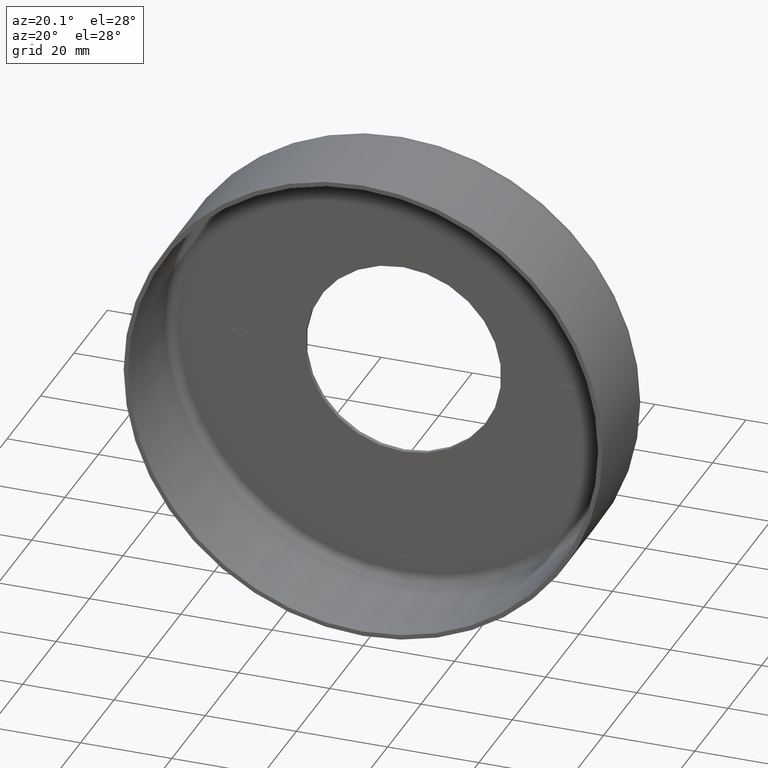
[diagram: clean part render]
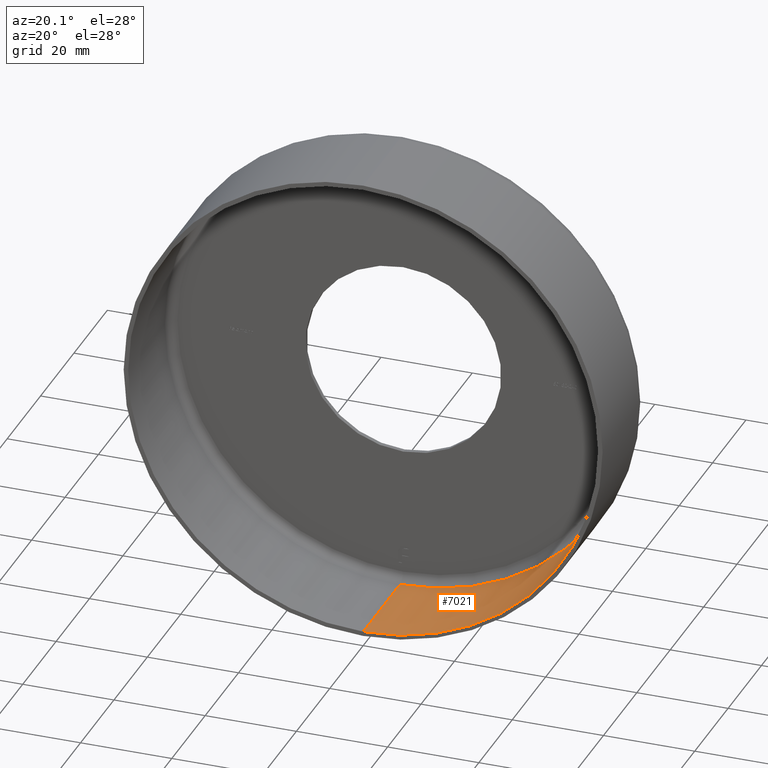
[diagram: same view with one face highlighted and labeled with its STEP entity id]
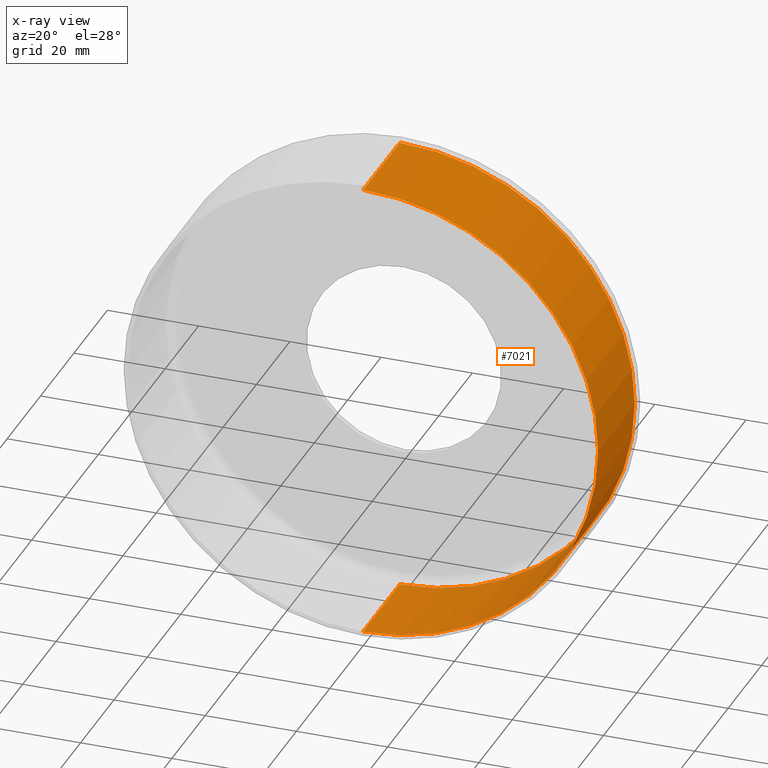
[diagram: x-ray of the same camera — body ghosted, the highlighted face saturated]
A machine part, auxiliary view. The second image highlights one B-rep face of the part: STEP entity #7021.
The next image is the same camera in x-ray: the body ghosted, the highlighted face saturated — about 0% of this face is hidden behind the body in this view.
In plain terms, the highlighted cylindrical surface (partial cylindrical patch) has radius 51.5 mm, axis along (-0, -1, -0).
Its self-contained STEP definition (entity closure, byte-faithful):
#143 = CIRCLE ( 'NONE', #1248, 51.50000000000000711 ) ;
#405 = CARTESIAN_POINT ( 'NONE',  ( 0.000000000000000000, 22.00000000000000355, -51.50000000000000711 ) ) ;
#896 = DIRECTION ( 'NONE',  ( -0.000000000000000000, -1.000000000000000000, -0.000000000000000000 ) ) ;
#936 = VERTEX_POINT ( 'NONE', #3078 ) ;
#1248 = AXIS2_PLACEMENT_3D ( 'NONE', #1702, #10227, #5372 ) ;
#1380 = ORIENTED_EDGE ( 'NONE', *, *, #5346, .F. ) ;
#1469 = EDGE_CURVE ( 'NONE', #11287, #12574, #10505, .T. ) ;
#1626 = LINE ( 'NONE', #10617, #10022 ) ;
#1702 = CARTESIAN_POINT ( 'NONE',  ( 0.000000000000000000, 22.00000000000000355, 0.000000000000000000 ) ) ;
#2189 = CARTESIAN_POINT ( 'NONE',  ( 0.000000000000000000, -1.224646799147353207E-16, 0.000000000000000000 ) ) ;
#2279 = DIRECTION ( 'NONE',  ( 0.000000000000000000, 0.000000000000000000, -1.000000000000000000 ) ) ;
#2455 = DIRECTION ( 'NONE',  ( 0.000000000000000000, 0.000000000000000000, -1.000000000000000000 ) ) ;
#2473 = AXIS2_PLACEMENT_3D ( 'NONE', #2189, #9387, #2279 ) ;
#3078 = CARTESIAN_POINT ( 'NONE',  ( 0.000000000000000000, -1.224646799147353207E-16, -51.50000000000000711 ) ) ;
#3912 = CARTESIAN_POINT ( 'NONE',  ( 6.306931015608869596E-15, 22.00000000000000355, 51.50000000000000711 ) ) ;
#5201 = ORIENTED_EDGE ( 'NONE', *, *, #8941, .T. ) ;
#5346 = EDGE_CURVE ( 'NONE', #10567, #11287, #143, .T. ) ;
#5372 = DIRECTION ( 'NONE',  ( 0.000000000000000000, 0.000000000000000000, -1.000000000000000000 ) ) ;
#5526 = DIRECTION ( 'NONE',  ( -0.000000000000000000, -1.000000000000000000, -0.000000000000000000 ) ) ;
#5996 = EDGE_LOOP ( 'NONE', ( #9872, #1380, #5201, #9216 ) ) ;
#6422 = CYLINDRICAL_SURFACE ( 'NONE', #13584, 51.50000000000000711 ) ;
#7021 = ADVANCED_FACE ( 'NONE', ( #10050 ), #6422, .F. ) ;
#8579 = VECTOR ( 'NONE', #5526, 1000.000000000000000 ) ;
#8941 = EDGE_CURVE ( 'NONE', #10567, #936, #1626, .T. ) ;
#9216 = ORIENTED_EDGE ( 'NONE', *, *, #12244, .T. ) ;
#9387 = DIRECTION ( 'NONE',  ( -0.000000000000000000, -1.000000000000000000, -0.000000000000000000 ) ) ;
#9410 = CARTESIAN_POINT ( 'NONE',  ( 0.000000000000000000, 0.000000000000000000, 0.000000000000000000 ) ) ;
#9872 = ORIENTED_EDGE ( 'NONE', *, *, #1469, .F. ) ;
#10022 = VECTOR ( 'NONE', #896, 1000.000000000000000 ) ;
#10050 = FACE_OUTER_BOUND ( 'NONE', #5996, .T. ) ;
#10227 = DIRECTION ( 'NONE',  ( -0.000000000000000000, -1.000000000000000000, -0.000000000000000000 ) ) ;
#10505 = LINE ( 'NONE', #13989, #8579 ) ;
#10567 = VERTEX_POINT ( 'NONE', #405 ) ;
#10617 = CARTESIAN_POINT ( 'NONE',  ( 0.000000000000000000, 0.000000000000000000, -51.50000000000000711 ) ) ;
#11287 = VERTEX_POINT ( 'NONE', #3912 ) ;
#12087 = CIRCLE ( 'NONE', #2473, 51.50000000000000711 ) ;
#12113 = DIRECTION ( 'NONE',  ( -0.000000000000000000, -1.000000000000000000, -0.000000000000000000 ) ) ;
#12244 = EDGE_CURVE ( 'NONE', #936, #12574, #12087, .T. ) ;
#12574 = VERTEX_POINT ( 'NONE', #14733 ) ;
#13584 = AXIS2_PLACEMENT_3D ( 'NONE', #9410, #12113, #2455 ) ;
#13989 = CARTESIAN_POINT ( 'NONE',  ( 6.306931015608869596E-15, 0.000000000000000000, 51.50000000000000711 ) ) ;
#14733 = CARTESIAN_POINT ( 'NONE',  ( 6.306931015608869596E-15, -1.224646799147353207E-16, 51.50000000000000711 ) ) ;